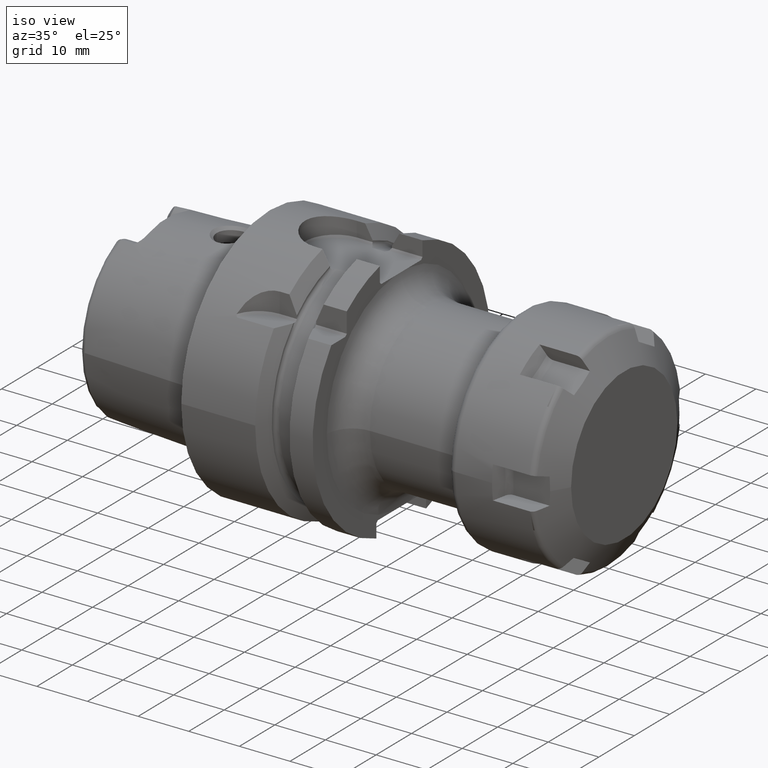
[diagram: clean part render]
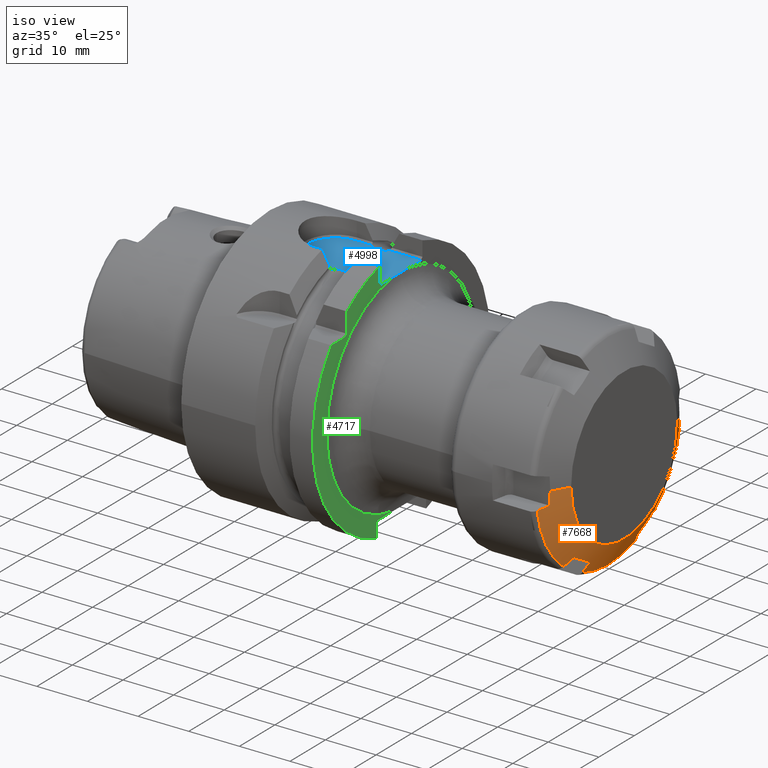
[diagram: same view with three faces highlighted in distinct colors, each labeled with its STEP entity id]
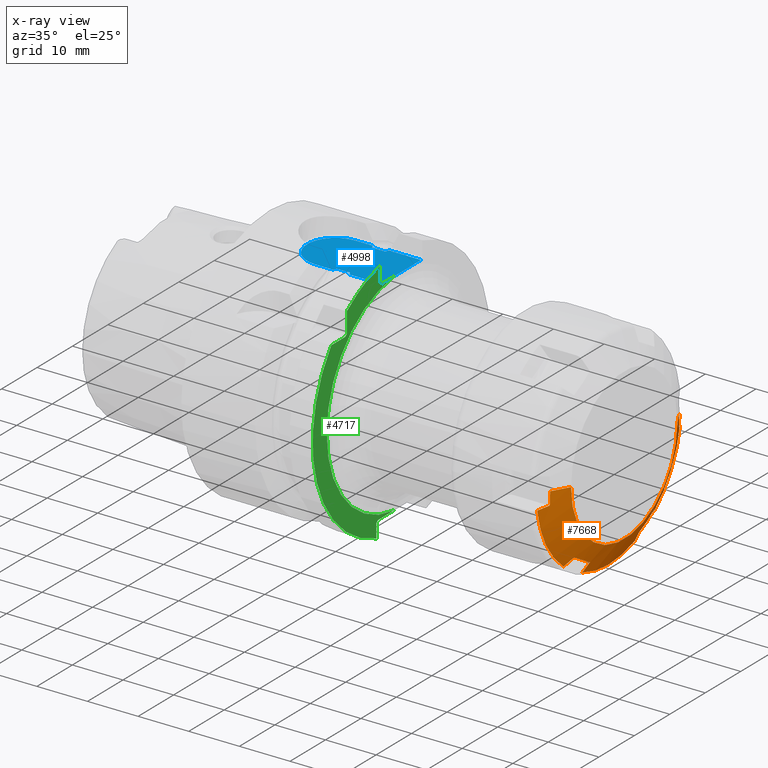
[diagram: x-ray of the same camera — body ghosted, the three highlighted faces saturated]
A machine part, iso view with three faces highlighted in distinct colors.
The next image is the same camera in x-ray (body ghosted, the three faces saturated) — at least one of them is partly hidden behind the body in this view.
Their STEP definitions:

[orange] entity #7668 — the highlighted conical surface has half-angle 60 deg.
#6732=CARTESIAN_POINT('',(1.689674230311E1,7.405303719456E0,-1.898162537357E1));
#6733=CARTESIAN_POINT('',(1.708907504526E1,7.313084535866E0,-1.866001886072E1));
#6734=CARTESIAN_POINT('',(1.747048804972E1,7.130166601835E0,-1.802210821554E1));
#6735=CARTESIAN_POINT('',(1.784538315893E1,6.950287483250E0,-1.739479517924E1));
#6736=CARTESIAN_POINT('',(1.803119743883E1,6.861107026386E0,-1.708378596587E1));
#6738=CARTESIAN_POINT('',(1.689674230311E1,-1.915276904626E-14,0.E0));
#6739=DIRECTION('',(-1.E0,0.E0,0.E0));
#6740=DIRECTION('',(0.E0,3.634504892985E-1,-9.316135152673E-1));
#6741=AXIS2_PLACEMENT_3D('',#6738,#6739,#6740);
#6743=CARTESIAN_POINT('',(1.803119743883E1,-6.861107026386E0,
-1.708378596587E1));
#6744=CARTESIAN_POINT('',(1.784547076956E1,-6.950245435050E0,
-1.739464853974E1));
#6745=CARTESIAN_POINT('',(1.747066334160E1,-7.130082516612E0,
-1.802181497552E1));
#6746=CARTESIAN_POINT('',(1.708916272E1,-7.313042497819E0,-1.865987225663E1));
#6747=CARTESIAN_POINT('',(1.689674230311E1,-7.405303719456E0,
-1.898162537357E1));
#6749=CARTESIAN_POINT('',(1.803119743883E1,-1.136443912607E1,
-1.448378596587E1));
#6750=CARTESIAN_POINT('',(1.807831826555E1,-1.086395978015E1,
-1.477273785096E1));
#6751=CARTESIAN_POINT('',(1.814168574823E1,-9.863120560131E0,
-1.535057264405E1));
#6752=CARTESIAN_POINT('',(1.814168449187E1,-8.362394930781E0,
-1.621701699013E1));
#6753=CARTESIAN_POINT('',(1.807831703246E1,-7.361573275411E0,
-1.679484164227E1));
#6754=CARTESIAN_POINT('',(1.803119743883E1,-6.861107026386E0,
-1.708378596587E1));
#6756=CARTESIAN_POINT('',(1.689674230311E1,-1.273591791890E1,
-1.590399383057E1));
#6757=CARTESIAN_POINT('',(1.708907504526E1,-1.250350810055E1,
-1.566332641844E1));
#6758=CARTESIAN_POINT('',(1.747048804972E1,-1.204252024350E1,
-1.518595951818E1));
#6759=CARTESIAN_POINT('',(1.784538315893E1,-1.158919077723E1,
-1.471652311372E1));
#6760=CARTESIAN_POINT('',(1.803119743883E1,-1.136443912607E1,
-1.448378596587E1));
#6762=CARTESIAN_POINT('',(1.689674230311E1,-1.915276904626E-14,0.E0));
#6763=DIRECTION('',(-1.E0,0.E0,0.E0));
#6764=DIRECTION('',(0.E0,-6.250757260812E-1,-7.805641143840E-1));
#6765=AXIS2_PLACEMENT_3D('',#6762,#6763,#6764);
#6767=CARTESIAN_POINT('',(1.803119743883E1,-1.822554615245E1,-2.6E0));
#6768=CARTESIAN_POINT('',(1.784547076956E1,-1.853933024284E1,
-2.678235160582E0));
#6769=CARTESIAN_POINT('',(1.747066334160E1,-1.917239084941E1,
-2.836074897296E0));
#6770=CARTESIAN_POINT('',(1.708916272E1,-1.981644465452E1,-2.996655546247E0));
#6771=CARTESIAN_POINT('',(1.689674230311E1,-2.014122163836E1,
-3.077631542997E0));
#6773=CARTESIAN_POINT('',(1.813773006060E1,-1.822554615245E1,0.E0));
#6774=CARTESIAN_POINT('',(1.813773006060E1,-1.822554615245E1,
-2.889809035546E-1));
#6775=CARTESIAN_POINT('',(1.812978891864E1,-1.822554615245E1,
-8.668802635554E-1));
#6776=CARTESIAN_POINT('',(1.809415446357E1,-1.822554615245E1,
-1.733491685998E0));
#6777=CARTESIAN_POINT('',(1.805474752385E1,-1.822554615245E1,
-2.311174784706E0));
#6778=CARTESIAN_POINT('',(1.803119743883E1,-1.822554615245E1,-2.6E0));
#6780=DIRECTION('',(-5.E-1,-8.660254037844E-1,0.E0));
#6781=VECTOR('',#6780,3.724539878802E0);
#6782=CARTESIAN_POINT('',(2.E1,-1.5E1,0.E0));
#6783=LINE('',#6782,#6781);
#6784=CARTESIAN_POINT('',(2.E1,-2.266909448450E-14,0.E0));
#6785=DIRECTION('',(-1.E0,0.E0,0.E0));
#6786=DIRECTION('',(0.E0,1.E0,0.E0));
#6787=AXIS2_PLACEMENT_3D('',#6784,#6785,#6786);
#6789=DIRECTION('',(-5.E-1,8.660254037844E-1,1.219275797742E-14));
#6790=VECTOR('',#6789,3.724539878802E0);
#6791=CARTESIAN_POINT('',(2.E1,1.5E1,0.E0));
#6792=LINE('',#6791,#6790);
#6793=CARTESIAN_POINT('',(1.803119743883E1,1.822554615245E1,-2.6E0));
#6794=CARTESIAN_POINT('',(1.805475075341E1,1.822554615245E1,-2.311135176476E0));
#6795=CARTESIAN_POINT('',(1.809415978675E1,1.822554615245E1,-1.733399257211E0));
#6796=CARTESIAN_POINT('',(1.812979067473E1,1.822554615245E1,
-8.668016124823E-1));
#6797=CARTESIAN_POINT('',(1.813773006060E1,1.822554615245E1,
-2.889472613191E-1));
#6798=CARTESIAN_POINT('',(1.813773006060E1,1.822554615245E1,
4.663706011864E-14));
#6800=CARTESIAN_POINT('',(1.689674230311E1,2.014122163836E1,-3.077631542997E0));
#6801=CARTESIAN_POINT('',(1.708907504526E1,1.981659263641E1,-2.996692442277E0));
#6802=CARTESIAN_POINT('',(1.747048804972E1,1.917268684533E1,-2.836148697367E0));
#6803=CARTESIAN_POINT('',(1.784538315893E1,1.853947826048E1,-2.678272065523E0));
#6804=CARTESIAN_POINT('',(1.803119743883E1,1.822554615245E1,-2.6E0));
#6806=CARTESIAN_POINT('',(1.689674230311E1,-1.915276904626E-14,0.E0));
#6807=DIRECTION('',(-1.E0,0.E0,0.E0));
#6808=DIRECTION('',(0.E0,9.885262153796E-1,-1.510494008833E-1));
#6809=AXIS2_PLACEMENT_3D('',#6806,#6807,#6808);
#6811=CARTESIAN_POINT('',(1.803119743883E1,1.136443912607E1,-1.448378596587E1));
#6812=CARTESIAN_POINT('',(1.784547076956E1,1.158908480779E1,-1.471641337916E1));
#6813=CARTESIAN_POINT('',(1.747066334160E1,1.204230833280E1,-1.518574007823E1));
#6814=CARTESIAN_POINT('',(1.708916272E1,1.250340215670E1,-1.566321671038E1));
#6815=CARTESIAN_POINT('',(1.689674230311E1,1.273591791890E1,-1.590399383057E1));
#6817=CARTESIAN_POINT('',(1.803119743883E1,6.861107026386E0,-1.708378596587E1));
#6818=CARTESIAN_POINT('',(1.807831826555E1,7.361586372305E0,-1.679483408078E1));
#6819=CARTESIAN_POINT('',(1.814168574823E1,8.362425592320E0,-1.621699928769E1));
#6820=CARTESIAN_POINT('',(1.814168449187E1,9.863151221670E0,-1.535055494160E1));
#6821=CARTESIAN_POINT('',(1.807831703246E1,1.086397287704E1,-1.477273028946E1));
#6822=CARTESIAN_POINT('',(1.803119743883E1,1.136443912607E1,-1.448378596587E1));
#7099=CARTESIAN_POINT('',(1.813773006060E1,1.822554615245E1,
4.663706011864E-14));
#7116=CARTESIAN_POINT('',(1.813773006060E1,-1.822554615245E1,0.E0));
#7516=CARTESIAN_POINT('',(2.E1,1.5E1,0.E0));
#7517=CARTESIAN_POINT('',(2.E1,-1.5E1,0.E0));
#7518=VERTEX_POINT('',#7516);
#7519=VERTEX_POINT('',#7517);
#7530=VERTEX_POINT('',#7099);
#7531=VERTEX_POINT('',#6800);
#7532=VERTEX_POINT('',#6804);
#7575=VERTEX_POINT('',#7116);
#7576=VERTEX_POINT('',#6767);
#7577=VERTEX_POINT('',#6771);
#7590=VERTEX_POINT('',#6756);
#7591=VERTEX_POINT('',#6760);
#7592=VERTEX_POINT('',#6743);
#7593=VERTEX_POINT('',#6747);
#7604=VERTEX_POINT('',#6732);
#7605=VERTEX_POINT('',#6736);
#7606=VERTEX_POINT('',#6811);
#7607=VERTEX_POINT('',#6815);
#7630=CARTESIAN_POINT('',(1.844837115155E1,-2.091093176538E-14,0.E0));
#7631=DIRECTION('',(-1.E0,0.E0,0.E0));
#7632=DIRECTION('',(0.E0,1.E0,0.E0));
#7633=AXIS2_PLACEMENT_3D('',#7630,#7631,#7632);
#7634=CONICAL_SURFACE('',#7633,1.76875E1,6.E1);
#7636=ORIENTED_EDGE('',*,*,#7635,.F.);
#7638=ORIENTED_EDGE('',*,*,#7637,.T.);
#7640=ORIENTED_EDGE('',*,*,#7639,.F.);
#7642=ORIENTED_EDGE('',*,*,#7641,.F.);
#7644=ORIENTED_EDGE('',*,*,#7643,.F.);
#7646=ORIENTED_EDGE('',*,*,#7645,.T.);
#7648=ORIENTED_EDGE('',*,*,#7647,.F.);
#7650=ORIENTED_EDGE('',*,*,#7649,.F.);
#7652=ORIENTED_EDGE('',*,*,#7651,.F.);
#7653=ORIENTED_EDGE('',*,*,#7623,.F.);
#7655=ORIENTED_EDGE('',*,*,#7654,.T.);
#7657=ORIENTED_EDGE('',*,*,#7656,.F.);
#7659=ORIENTED_EDGE('',*,*,#7658,.F.);
#7661=ORIENTED_EDGE('',*,*,#7660,.T.);
#7663=ORIENTED_EDGE('',*,*,#7662,.F.);
#7665=ORIENTED_EDGE('',*,*,#7664,.F.);
#7666=EDGE_LOOP('',(#7636,#7638,#7640,#7642,#7644,#7646,#7648,#7650,#7652,#7653,
#7655,#7657,#7659,#7661,#7663,#7665));
#7667=FACE_OUTER_BOUND('',#7666,.F.);
#7668=ADVANCED_FACE('',(#7667),#7634,.T.);
#6737=B_SPLINE_CURVE_WITH_KNOTS('',3,(#6732,#6733,#6734,#6735,#6736),
.UNSPECIFIED.,.F.,.F.,(4,1,4),(0.E0,5.E-1,1.E0),.UNSPECIFIED.);
#6742=CIRCLE('',#6741,2.0375E1);
#6748=B_SPLINE_CURVE_WITH_KNOTS('',3,(#6743,#6744,#6745,#6746,#6747),
.UNSPECIFIED.,.F.,.F.,(4,1,4),(0.E0,5.E-1,1.E0),.UNSPECIFIED.);
#6755=B_SPLINE_CURVE_WITH_KNOTS('',3,(#6749,#6750,#6751,#6752,#6753,#6754),
.UNSPECIFIED.,.F.,.F.,(4,1,1,4),(0.E0,3.333333333333E-1,6.666666666667E-1,1.E0),
.UNSPECIFIED.);
#6761=B_SPLINE_CURVE_WITH_KNOTS('',3,(#6756,#6757,#6758,#6759,#6760),
.UNSPECIFIED.,.F.,.F.,(4,1,4),(0.E0,5.E-1,1.E0),.UNSPECIFIED.);
#6766=CIRCLE('',#6765,2.0375E1);
#6772=B_SPLINE_CURVE_WITH_KNOTS('',3,(#6767,#6768,#6769,#6770,#6771),
.UNSPECIFIED.,.F.,.F.,(4,1,4),(0.E0,5.E-1,1.E0),.UNSPECIFIED.);
#6779=B_SPLINE_CURVE_WITH_KNOTS('',3,(#6773,#6774,#6775,#6776,#6777,#6778),
.UNSPECIFIED.,.F.,.F.,(4,1,1,4),(0.E0,3.333333333333E-1,6.666666666667E-1,1.E0),
.UNSPECIFIED.);
#6788=CIRCLE('',#6787,1.5E1);
#6799=B_SPLINE_CURVE_WITH_KNOTS('',3,(#6793,#6794,#6795,#6796,#6797,#6798),
.UNSPECIFIED.,.F.,.F.,(4,1,1,4),(0.E0,3.333333333333E-1,6.666666666667E-1,1.E0),
.UNSPECIFIED.);
#6805=B_SPLINE_CURVE_WITH_KNOTS('',3,(#6800,#6801,#6802,#6803,#6804),
.UNSPECIFIED.,.F.,.F.,(4,1,4),(0.E0,5.E-1,1.E0),.UNSPECIFIED.);
#6810=CIRCLE('',#6809,2.0375E1);
#6816=B_SPLINE_CURVE_WITH_KNOTS('',3,(#6811,#6812,#6813,#6814,#6815),
.UNSPECIFIED.,.F.,.F.,(4,1,4),(0.E0,5.E-1,1.E0),.UNSPECIFIED.);
#6823=B_SPLINE_CURVE_WITH_KNOTS('',3,(#6817,#6818,#6819,#6820,#6821,#6822),
.UNSPECIFIED.,.F.,.F.,(4,1,1,4),(0.E0,3.333333333333E-1,6.666666666667E-1,1.E0),
.UNSPECIFIED.);
#7623=EDGE_CURVE('',#7518,#7519,#6788,.T.);
#7635=EDGE_CURVE('',#7604,#7605,#6737,.T.);
#7637=EDGE_CURVE('',#7604,#7593,#6742,.T.);
#7639=EDGE_CURVE('',#7592,#7593,#6748,.T.);
#7641=EDGE_CURVE('',#7591,#7592,#6755,.T.);
#7643=EDGE_CURVE('',#7590,#7591,#6761,.T.);
#7645=EDGE_CURVE('',#7590,#7577,#6766,.T.);
#7647=EDGE_CURVE('',#7576,#7577,#6772,.T.);
#7649=EDGE_CURVE('',#7575,#7576,#6779,.T.);
#7651=EDGE_CURVE('',#7519,#7575,#6783,.T.);
#7654=EDGE_CURVE('',#7518,#7530,#6792,.T.);
#7656=EDGE_CURVE('',#7532,#7530,#6799,.T.);
#7658=EDGE_CURVE('',#7531,#7532,#6805,.T.);
#7660=EDGE_CURVE('',#7531,#7607,#6810,.T.);
#7662=EDGE_CURVE('',#7606,#7607,#6816,.T.);
#7664=EDGE_CURVE('',#7605,#7606,#6823,.T.);

[blue] entity #4998 — the highlighted planar face has unit normal (0, 0, 1).
#1243=DIRECTION('',(-1.E0,0.E0,0.E0));
#1244=VECTOR('',#1243,2.325E0);
#1245=CARTESIAN_POINT('',(1.91625E1,4.936154880066E0,2.09E1));
#1246=LINE('',#1245,#1244);
#1256=DIRECTION('',(1.E0,0.E0,0.E0));
#1257=VECTOR('',#1256,2.325E0);
#1258=CARTESIAN_POINT('',(1.68375E1,-4.936154880066E0,2.09E1));
#1259=LINE('',#1258,#1257);
#1410=DIRECTION('',(0.E0,9.999999999970E-1,2.453528464787E-6));
#1411=VECTOR('',#1410,3.570612580180E0);
#1412=CARTESIAN_POINT('',(2.595E1,-5.6175E0,2.09E1));
#1413=LINE('',#1412,#1411);
#1419=DIRECTION('',(0.E0,9.999999999981E-1,-1.968012417660E-6));
#1420=VECTOR('',#1419,3.570611329250E0);
#1421=CARTESIAN_POINT('',(2.595E1,2.046888670757E0,2.090000702701E1));
#1422=LINE('',#1421,#1420);
#1612=CARTESIAN_POINT('',(2.595100009998E1,-2.830727837943E-4,2.09E1));
#1613=CARTESIAN_POINT('',(2.595100003830E1,-2.279391360090E-1,2.09E1));
#1614=CARTESIAN_POINT('',(2.595084275897E1,-6.830762815723E-1,
2.090000116808E1));
#1615=CARTESIAN_POINT('',(2.595028654277E1,-1.365254586502E0,2.089999591172E1));
#1616=CARTESIAN_POINT('',(2.595E1,-1.819693488809E0,2.090000876060E1));
#1617=CARTESIAN_POINT('',(2.595E1,-2.046887419831E0,2.090000876060E1));
#1619=DIRECTION('',(-1.E0,0.E0,0.E0));
#1620=VECTOR('',#1619,6.315964852731E0);
#1621=CARTESIAN_POINT('',(2.595E1,-5.6175E0,2.09E1));
#1622=LINE('',#1621,#1620);
#1623=CARTESIAN_POINT('',(1.91625E1,-4.936154880066E0,2.09E1));
#1624=CARTESIAN_POINT('',(1.918512572534E1,-4.936154880066E0,2.09E1));
#1625=CARTESIAN_POINT('',(1.922927798714E1,-4.944905345685E0,2.09E1));
#1626=CARTESIAN_POINT('',(1.929364299727E1,-4.982466702461E0,2.09E1));
#1627=CARTESIAN_POINT('',(1.935193358380E1,-5.037701592377E0,2.09E1));
#1628=CARTESIAN_POINT('',(1.940696398688E1,-5.108493844033E0,2.09E1));
#1629=CARTESIAN_POINT('',(1.945754115550E1,-5.190349964585E0,2.09E1));
#1630=CARTESIAN_POINT('',(1.950483688118E1,-5.281854502074E0,2.09E1));
#1631=CARTESIAN_POINT('',(1.954984677491E1,-5.383296798535E0,2.09E1));
#1632=CARTESIAN_POINT('',(1.959291205605E1,-5.494511889336E0,2.09E1));
#1633=CARTESIAN_POINT('',(1.962051721705E1,-5.575394790376E0,2.09E1));
#1634=CARTESIAN_POINT('',(1.963403514727E1,-5.6175E0,2.09E1));
#1636=CARTESIAN_POINT('',(1.636596485273E1,-5.6175E0,2.09E1));
#1637=CARTESIAN_POINT('',(1.637723073093E1,-5.582409408806E0,2.09E1));
#1638=CARTESIAN_POINT('',(1.640088079254E1,-5.512208770329E0,2.09E1));
#1639=CARTESIAN_POINT('',(1.644127677987E1,-5.405169222578E0,2.09E1));
#1640=CARTESIAN_POINT('',(1.648542523065E1,-5.302559468502E0,2.09E1));
#1641=CARTESIAN_POINT('',(1.653267499575E1,-5.208006963190E0,2.09E1));
#1642=CARTESIAN_POINT('',(1.658270514026E1,-5.123923103323E0,2.09E1));
#1643=CARTESIAN_POINT('',(1.663659931211E1,-5.050897729353E0,2.09E1));
#1644=CARTESIAN_POINT('',(1.669594649704E1,-4.990432118684E0,2.09E1));
#1645=CARTESIAN_POINT('',(1.676415776210E1,-4.946912528541E0,2.09E1));
#1646=CARTESIAN_POINT('',(1.681240342288E1,-4.936154880066E0,2.09E1));
#1647=CARTESIAN_POINT('',(1.68375E1,-4.936154880066E0,2.09E1));
#1649=DIRECTION('',(-1.E0,-7.852701927823E-8,-7.858421558079E-8));
#1650=VECTOR('',#1649,3.398464844756E0);
#1651=CARTESIAN_POINT('',(1.636596485273E1,-5.6175E0,2.09E1));
#1652=LINE('',#1651,#1650);
#1653=CARTESIAN_POINT('',(1.29675E1,0.E0,2.089999824116E1));
#1654=DIRECTION('',(0.E0,0.E0,-1.E0));
#1655=DIRECTION('',(0.E0,-1.E0,0.E0));
#1656=AXIS2_PLACEMENT_3D('',#1653,#1654,#1655);
#1658=DIRECTION('',(1.E0,-7.853913086518E-8,7.857210474843E-8));
#1659=VECTOR('',#1658,3.398464845393E0);
#1660=CARTESIAN_POINT('',(1.296750000734E1,5.617500266912E0,2.089999973298E1));
#1661=LINE('',#1660,#1659);
#1662=CARTESIAN_POINT('',(1.68375E1,4.936154880066E0,2.09E1));
#1663=CARTESIAN_POINT('',(1.681506439560E1,4.936154880066E0,2.09E1));
#1664=CARTESIAN_POINT('',(1.677123088673E1,4.944673497632E0,2.09E1));
#1665=CARTESIAN_POINT('',(1.670637256749E1,4.982476421130E0,2.09E1));
#1666=CARTESIAN_POINT('',(1.664900590224E1,5.036748664290E0,2.09E1));
#1667=CARTESIAN_POINT('',(1.659405185059E1,5.106990956188E0,2.09E1));
#1668=CARTESIAN_POINT('',(1.654315187720E1,5.189091223446E0,2.09E1));
#1669=CARTESIAN_POINT('',(1.649561034933E1,5.280901992625E0,2.09E1));
#1670=CARTESIAN_POINT('',(1.645046741239E1,5.382525577117E0,2.09E1));
#1671=CARTESIAN_POINT('',(1.640725659792E1,5.494029910782E0,2.09E1));
#1672=CARTESIAN_POINT('',(1.637953976626E1,5.575217300602E0,2.09E1));
#1673=CARTESIAN_POINT('',(1.636596485273E1,5.6175E0,2.09E1));
#1675=CARTESIAN_POINT('',(1.963403514727E1,5.6175E0,2.09E1));
#1676=CARTESIAN_POINT('',(1.962121105487E1,5.577555933860E0,2.09E1));
#1677=CARTESIAN_POINT('',(1.959433966091E1,5.498305669547E0,2.09E1));
#1678=CARTESIAN_POINT('',(1.954802760583E1,5.378400607294E0,2.09E1));
#1679=CARTESIAN_POINT('',(1.949825271637E1,5.267721187528E0,2.09E1));
#1680=CARTESIAN_POINT('',(1.944679938215E1,5.171347555465E0,2.09E1));
#1681=CARTESIAN_POINT('',(1.939476256373E1,5.091349730416E0,2.09E1));
#1682=CARTESIAN_POINT('',(1.934209978086E1,5.027407982916E0,2.09E1));
#1683=CARTESIAN_POINT('',(1.928722183018E1,4.978138118530E0,2.09E1));
#1684=CARTESIAN_POINT('',(1.922686285427E1,4.944417861259E0,2.09E1));
#1685=CARTESIAN_POINT('',(1.918440943347E1,4.936154880066E0,2.09E1));
#1686=CARTESIAN_POINT('',(1.91625E1,4.936154880066E0,2.09E1));
#1688=DIRECTION('',(1.E0,0.E0,0.E0));
#1689=VECTOR('',#1688,6.315964852731E0);
#1690=CARTESIAN_POINT('',(1.963403514727E1,5.6175E0,2.09E1));
#1691=LINE('',#1690,#1689);
#1692=CARTESIAN_POINT('',(2.595E1,2.046888670757E0,2.090000702701E1));
#1693=CARTESIAN_POINT('',(2.595E1,1.819650086002E0,2.090000702701E1));
#1694=CARTESIAN_POINT('',(2.595028665999E1,1.365107372105E0,2.089999672073E1));
#1695=CARTESIAN_POINT('',(2.595084304173E1,6.826981894974E-1,2.090000093693E1));
#1696=CARTESIAN_POINT('',(2.595100016168E1,2.274353253195E-1,2.09E1));
#1697=CARTESIAN_POINT('',(2.595100009998E1,-2.830727837943E-4,2.09E1));
#2997=CARTESIAN_POINT('',(1.68375E1,-4.936154880066E0,2.09E1));
#2999=VERTEX_POINT('',#2997);
#3000=CARTESIAN_POINT('',(1.68375E1,4.936154880066E0,2.09E1));
#3002=VERTEX_POINT('',#3000);
#3005=CARTESIAN_POINT('',(1.91625E1,-4.936154880066E0,2.09E1));
#3007=VERTEX_POINT('',#3005);
#3008=CARTESIAN_POINT('',(1.91625E1,4.936154880066E0,2.09E1));
#3010=VERTEX_POINT('',#3008);
#3014=VERTEX_POINT('',#1673);
#3015=VERTEX_POINT('',#1636);
#3016=VERTEX_POINT('',#1675);
#3017=VERTEX_POINT('',#1634);
#3041=CARTESIAN_POINT('',(1.29675E1,-5.617499842972E0,2.089999824116E1));
#3042=CARTESIAN_POINT('',(1.29675E1,5.617499842972E0,2.089999824116E1));
#3043=VERTEX_POINT('',#3041);
#3044=VERTEX_POINT('',#3042);
#3053=CARTESIAN_POINT('',(2.595E1,-5.6175E0,2.09E1));
#3055=VERTEX_POINT('',#3053);
#3058=CARTESIAN_POINT('',(2.595E1,5.6175E0,2.09E1));
#3060=VERTEX_POINT('',#3058);
#3233=CARTESIAN_POINT('',(2.595E1,-2.047031928677E0,2.089999187280E1));
#3234=VERTEX_POINT('',#3233);
#3235=VERTEX_POINT('',#1612);
#3240=VERTEX_POINT('',#1692);
#4970=CARTESIAN_POINT('',(0.E0,0.E0,2.09E1));
#4971=DIRECTION('',(0.E0,0.E0,1.E0));
#4972=DIRECTION('',(1.E0,0.E0,0.E0));
#4973=AXIS2_PLACEMENT_3D('',#4970,#4971,#4972);
#4974=PLANE('',#4973);
#4976=ORIENTED_EDGE('',*,*,#4975,.T.);
#4977=ORIENTED_EDGE('',*,*,#4711,.F.);
#4979=ORIENTED_EDGE('',*,*,#4978,.T.);
#4981=ORIENTED_EDGE('',*,*,#4980,.F.);
#4982=ORIENTED_EDGE('',*,*,#4623,.F.);
#4983=ORIENTED_EDGE('',*,*,#4574,.F.);
#4985=ORIENTED_EDGE('',*,*,#4984,.T.);
#4987=ORIENTED_EDGE('',*,*,#4986,.T.);
#4988=ORIENTED_EDGE('',*,*,#4948,.T.);
#4989=ORIENTED_EDGE('',*,*,#4591,.F.);
#4990=ORIENTED_EDGE('',*,*,#4610,.F.);
#4992=ORIENTED_EDGE('',*,*,#4991,.F.);
#4993=ORIENTED_EDGE('',*,*,#4965,.T.);
#4994=ORIENTED_EDGE('',*,*,#4724,.F.);
#4995=ORIENTED_EDGE('',*,*,#4682,.T.);
#4996=EDGE_LOOP('',(#4976,#4977,#4979,#4981,#4982,#4983,#4985,#4987,#4988,#4989,
#4990,#4992,#4993,#4994,#4995));
#4997=FACE_OUTER_BOUND('',#4996,.F.);
#4998=ADVANCED_FACE('',(#4997),#4974,.T.);
#1618=B_SPLINE_CURVE_WITH_KNOTS('',3,(#1612,#1613,#1614,#1615,#1616,#1617),
.UNSPECIFIED.,.F.,.F.,(4,1,1,4),(0.E0,3.333333333333E-1,6.666666666667E-1,1.E0),
.UNSPECIFIED.);
#1635=B_SPLINE_CURVE_WITH_KNOTS('',3,(#1623,#1624,#1625,#1626,#1627,#1628,#1629,
#1630,#1631,#1632,#1633,#1634),.UNSPECIFIED.,.F.,.F.,(4,1,1,1,1,1,1,1,1,4),
(0.E0,1.111111111111E-1,2.222222222222E-1,3.333333333333E-1,4.444444444444E-1,
5.555555555556E-1,6.666666666667E-1,7.777777777778E-1,8.888888888889E-1,1.E0),
.UNSPECIFIED.);
#1648=B_SPLINE_CURVE_WITH_KNOTS('',3,(#1636,#1637,#1638,#1639,#1640,#1641,#1642,
#1643,#1644,#1645,#1646,#1647),.UNSPECIFIED.,.F.,.F.,(4,1,1,1,1,1,1,1,1,4),
(0.E0,1.111111111111E-1,2.222222222222E-1,3.333333333333E-1,4.444444444444E-1,
5.555555555556E-1,6.666666666667E-1,7.777777777778E-1,8.888888888889E-1,1.E0),
.UNSPECIFIED.);
#1657=CIRCLE('',#1656,5.617499842972E0);
#1674=B_SPLINE_CURVE_WITH_KNOTS('',3,(#1662,#1663,#1664,#1665,#1666,#1667,#1668,
#1669,#1670,#1671,#1672,#1673),.UNSPECIFIED.,.F.,.F.,(4,1,1,1,1,1,1,1,1,4),
(0.E0,1.111111111111E-1,2.222222222222E-1,3.333333333333E-1,4.444444444444E-1,
5.555555555556E-1,6.666666666667E-1,7.777777777778E-1,8.888888888889E-1,1.E0),
.UNSPECIFIED.);
#1687=B_SPLINE_CURVE_WITH_KNOTS('',3,(#1675,#1676,#1677,#1678,#1679,#1680,#1681,
#1682,#1683,#1684,#1685,#1686),.UNSPECIFIED.,.F.,.F.,(4,1,1,1,1,1,1,1,1,4),
(0.E0,1.111111111111E-1,2.222222222222E-1,3.333333333333E-1,4.444444444444E-1,
5.555555555556E-1,6.666666666667E-1,7.777777777778E-1,8.888888888889E-1,1.E0),
.UNSPECIFIED.);
#1698=B_SPLINE_CURVE_WITH_KNOTS('',3,(#1692,#1693,#1694,#1695,#1696,#1697),
.UNSPECIFIED.,.F.,.F.,(4,1,1,4),(0.E0,3.333333333333E-1,6.666666666667E-1,1.E0),
.UNSPECIFIED.);
#4574=EDGE_CURVE('',#3015,#2999,#1648,.T.);
#4591=EDGE_CURVE('',#3002,#3014,#1674,.T.);
#4610=EDGE_CURVE('',#3010,#3002,#1246,.T.);
#4623=EDGE_CURVE('',#2999,#3007,#1259,.T.);
#4682=EDGE_CURVE('',#3240,#3235,#1698,.T.);
#4711=EDGE_CURVE('',#3055,#3234,#1413,.T.);
#4724=EDGE_CURVE('',#3240,#3060,#1422,.T.);
#4948=EDGE_CURVE('',#3044,#3014,#1661,.T.);
#4965=EDGE_CURVE('',#3016,#3060,#1691,.T.);
#4975=EDGE_CURVE('',#3235,#3234,#1618,.T.);
#4978=EDGE_CURVE('',#3055,#3017,#1622,.T.);
#4980=EDGE_CURVE('',#3007,#3017,#1635,.T.);
#4984=EDGE_CURVE('',#3015,#3043,#1652,.T.);
#4986=EDGE_CURVE('',#3043,#3044,#1657,.T.);
#4991=EDGE_CURVE('',#3016,#3010,#1687,.T.);

[green] entity #4717 — the highlighted planar face has unit normal (1, 0, 0).
#1010=CARTESIAN_POINT('',(2.595E1,0.E0,0.E0));
#1011=DIRECTION('',(1.E0,0.E0,0.E0));
#1012=DIRECTION('',(0.E0,-2.407E-1,9.705995621264E-1));
#1013=AXIS2_PLACEMENT_3D('',#1010,#1011,#1012);
#1019=CARTESIAN_POINT('',(2.595E1,0.E0,0.E0));
#1020=DIRECTION('',(1.E0,0.E0,0.E0));
#1021=DIRECTION('',(0.E0,-7.893060243024E-1,6.14E-1));
#1022=AXIS2_PLACEMENT_3D('',#1019,#1020,#1021);
#1385=CARTESIAN_POINT('',(2.595E1,0.E0,0.E0));
#1386=DIRECTION('',(1.E0,0.E0,0.E0));
#1387=DIRECTION('',(0.E0,-1.E0,0.E0));
#1388=AXIS2_PLACEMENT_3D('',#1385,#1386,#1387);
#1390=DIRECTION('',(0.E0,-9.999999999988E-1,1.530364959121E-6));
#1391=VECTOR('',#1390,4.570611254369E0);
#1392=CARTESIAN_POINT('',(2.595E1,-2.046888745637E0,-2.090000699470E1));
#1393=LINE('',#1392,#1391);
#1394=DIRECTION('',(0.E0,0.E0,1.E0));
#1395=VECTOR('',#1394,2.694888908891E0);
#1396=CARTESIAN_POINT('',(2.595E1,-7.0175E0,-2.399488890889E1));
#1397=LINE('',#1396,#1395);
#1398=DIRECTION('',(0.E0,1.E0,0.E0));
#1399=VECTOR('',#1398,3.982650607559E0);
#1400=CARTESIAN_POINT('',(2.595E1,-1.973265060756E1,1.535E1));
#1401=LINE('',#1400,#1399);
#1402=DIRECTION('',(0.E0,0.E0,-1.E0));
#1403=VECTOR('',#1402,3.982650607559E0);
#1404=CARTESIAN_POINT('',(2.595E1,-1.535E1,1.973265060756E1));
#1405=LINE('',#1404,#1403);
#1406=DIRECTION('',(0.E0,0.E0,-1.E0));
#1407=VECTOR('',#1406,2.964989053161E0);
#1408=CARTESIAN_POINT('',(2.595E1,-6.0175E0,2.426498905316E1));
#1409=LINE('',#1408,#1407);
#1410=DIRECTION('',(0.E0,9.999999999970E-1,2.453528464787E-6));
#1411=VECTOR('',#1410,3.570612580180E0);
#1412=CARTESIAN_POINT('',(2.595E1,-5.6175E0,2.09E1));
#1413=LINE('',#1412,#1411);
#1414=CARTESIAN_POINT('',(2.595E1,0.E0,0.E0));
#1415=DIRECTION('',(1.E0,0.E0,0.E0));
#1416=DIRECTION('',(0.E0,-9.747771088939E-2,9.952377082284E-1));
#1417=AXIS2_PLACEMENT_3D('',#1414,#1415,#1416);
#1460=DIRECTION('',(0.E0,7.071067811866E-1,7.071067811865E-1));
#1461=VECTOR('',#1460,5.656854249492E-1);
#1462=CARTESIAN_POINT('',(2.595E1,-7.0175E0,-2.13E1));
#1463=LINE('',#1462,#1461);
#1795=DIRECTION('',(0.E0,-7.071067811865E-1,7.071067811865E-1));
#1796=VECTOR('',#1795,5.656854249492E-1);
#1797=CARTESIAN_POINT('',(2.595E1,-5.6175E0,2.09E1));
#1798=LINE('',#1797,#1796);
#1892=DIRECTION('',(0.E0,-7.071067811865E-1,-7.071067811865E-1));
#1893=VECTOR('',#1892,5.656854249492E-1);
#1894=CARTESIAN_POINT('',(2.595E1,-1.535E1,1.575E1));
#1895=LINE('',#1894,#1893);
#3053=CARTESIAN_POINT('',(2.595E1,-5.6175E0,2.09E1));
#3054=CARTESIAN_POINT('',(2.595E1,-6.0175E0,2.13E1));
#3055=VERTEX_POINT('',#3053);
#3056=VERTEX_POINT('',#3054);
#3089=CARTESIAN_POINT('',(2.595E1,-7.0175E0,-2.13E1));
#3090=CARTESIAN_POINT('',(2.595E1,-6.6175E0,-2.09E1));
#3091=VERTEX_POINT('',#3089);
#3092=VERTEX_POINT('',#3090);
#3103=CARTESIAN_POINT('',(2.595E1,-1.535E1,1.575E1));
#3104=CARTESIAN_POINT('',(2.595E1,-1.575E1,1.535E1));
#3105=VERTEX_POINT('',#3103);
#3106=VERTEX_POINT('',#3104);
#3131=CARTESIAN_POINT('',(2.595E1,-1.973265060756E1,1.535E1));
#3132=VERTEX_POINT('',#3131);
#3133=CARTESIAN_POINT('',(2.595E1,-1.535E1,1.973265060756E1));
#3134=VERTEX_POINT('',#3133);
#3173=CARTESIAN_POINT('',(2.595E1,-7.0175E0,-2.399488890889E1));
#3174=VERTEX_POINT('',#3173);
#3175=CARTESIAN_POINT('',(2.595E1,-6.0175E0,2.426498905316E1));
#3176=VERTEX_POINT('',#3175);
#3229=CARTESIAN_POINT('',(2.595E1,-2.1E1,0.E0));
#3230=CARTESIAN_POINT('',(2.595E1,-2.046982284805E0,-2.089999673506E1));
#3231=VERTEX_POINT('',#3229);
#3232=VERTEX_POINT('',#3230);
#3233=CARTESIAN_POINT('',(2.595E1,-2.047031928677E0,2.089999187280E1));
#3234=VERTEX_POINT('',#3233);
#4689=CARTESIAN_POINT('',(2.595E1,0.E0,0.E0));
#4690=DIRECTION('',(1.E0,0.E0,0.E0));
#4691=DIRECTION('',(0.E0,-1.E0,0.E0));
#4692=AXIS2_PLACEMENT_3D('',#4689,#4690,#4691);
#4693=PLANE('',#4692);
#4694=ORIENTED_EDGE('',*,*,#4672,.T.);
#4695=ORIENTED_EDGE('',*,*,#4661,.T.);
#4697=ORIENTED_EDGE('',*,*,#4696,.F.);
#4699=ORIENTED_EDGE('',*,*,#4698,.F.);
#4700=ORIENTED_EDGE('',*,*,#4316,.F.);
#4702=ORIENTED_EDGE('',*,*,#4701,.T.);
#4704=ORIENTED_EDGE('',*,*,#4703,.F.);
#4706=ORIENTED_EDGE('',*,*,#4705,.F.);
#4707=ORIENTED_EDGE('',*,*,#4304,.F.);
#4708=ORIENTED_EDGE('',*,*,#4493,.T.);
#4710=ORIENTED_EDGE('',*,*,#4709,.F.);
#4712=ORIENTED_EDGE('',*,*,#4711,.T.);
#4714=ORIENTED_EDGE('',*,*,#4713,.T.);
#4715=EDGE_LOOP('',(#4694,#4695,#4697,#4699,#4700,#4702,#4704,#4706,#4707,#4708,
#4710,#4712,#4714));
#4716=FACE_OUTER_BOUND('',#4715,.F.);
#4717=ADVANCED_FACE('',(#4716),#4693,.T.);
#1014=CIRCLE('',#1013,2.5E1);
#1023=CIRCLE('',#1022,2.5E1);
#1389=CIRCLE('',#1388,2.1E1);
#1418=CIRCLE('',#1417,2.1E1);
#4304=EDGE_CURVE('',#3176,#3134,#1014,.T.);
#4316=EDGE_CURVE('',#3132,#3174,#1023,.T.);
#4493=EDGE_CURVE('',#3176,#3056,#1409,.T.);
#4661=EDGE_CURVE('',#3232,#3092,#1393,.T.);
#4672=EDGE_CURVE('',#3231,#3232,#1389,.T.);
#4696=EDGE_CURVE('',#3091,#3092,#1463,.T.);
#4698=EDGE_CURVE('',#3174,#3091,#1397,.T.);
#4701=EDGE_CURVE('',#3132,#3106,#1401,.T.);
#4703=EDGE_CURVE('',#3105,#3106,#1895,.T.);
#4705=EDGE_CURVE('',#3134,#3105,#1405,.T.);
#4709=EDGE_CURVE('',#3055,#3056,#1798,.T.);
#4711=EDGE_CURVE('',#3055,#3234,#1413,.T.);
#4713=EDGE_CURVE('',#3234,#3231,#1418,.T.);